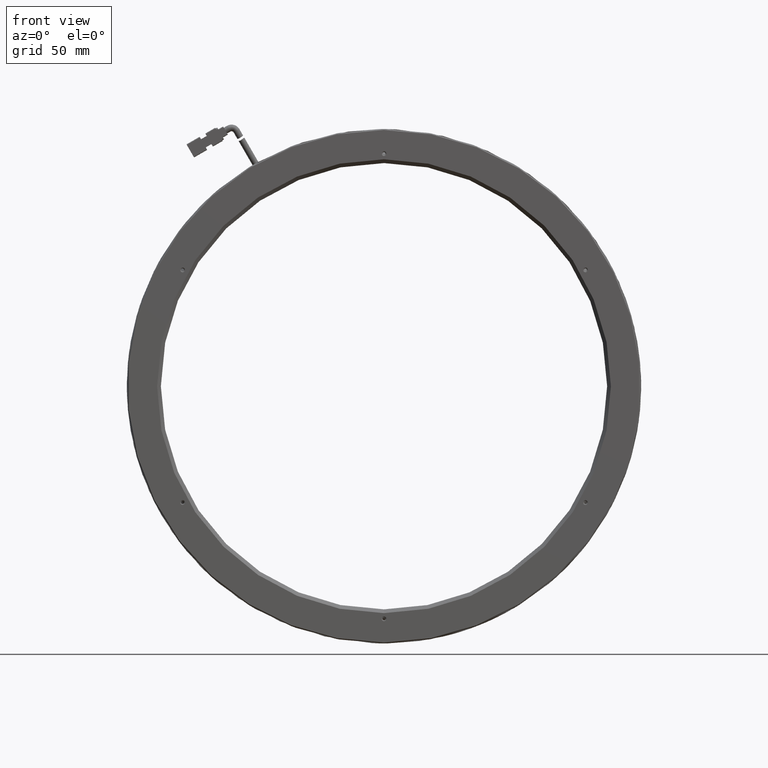
[diagram: clean part render]
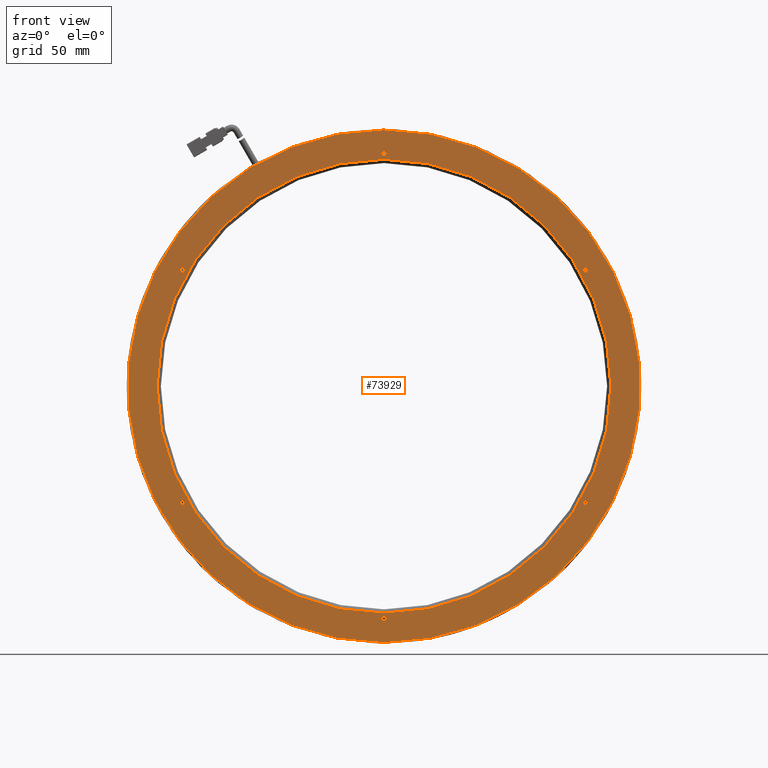
[diagram: same view with one face highlighted and labeled with its STEP entity id]
A machine part, front view. The second image highlights one B-rep face of the part: STEP entity #73929.
In plain terms, the highlighted planar face has unit normal (0, 1, 0).
Its self-contained STEP definition (entity closure, byte-faithful):
#355 = CIRCLE ( 'NONE', #2440, 135.5000000000000600 ) ;
#432 = EDGE_CURVE ( 'NONE', #66456, #11038, #44391, .T. ) ;
#2440 = AXIS2_PLACEMENT_3D ( 'NONE', #34137, #106592, #44519 ) ;
#2620 = VERTEX_POINT ( 'NONE', #104362 ) ;
#5239 = CARTESIAN_POINT ( 'NONE',  ( -23.30300868215379100, -3.366976514679594700, -121.7500000000000100 ) ) ;
#9697 = DIRECTION ( 'NONE',  ( -0.0000000000000000000, -1.000000000000000000, -0.0000000000000000000 ) ) ;
#10823 = EDGE_CURVE ( 'NONE', #91060, #79538, #19014, .T. ) ;
#11005 = EDGE_LOOP ( 'NONE', ( #99703, #20530 ) ) ;
#11038 = VERTEX_POINT ( 'NONE', #57504 ) ;
#11372 = DIRECTION ( 'NONE',  ( -0.0000000000000000000, -1.000000000000000000, -0.0000000000000000000 ) ) ;
#12764 = FACE_BOUND ( 'NONE', #73240, .T. ) ;
#13223 = EDGE_CURVE ( 'NONE', #13900, #14342, #84353, .T. ) ;
#13900 = VERTEX_POINT ( 'NONE', #41433 ) ;
#14342 = VERTEX_POINT ( 'NONE', #89174 ) ;
#15948 = FACE_BOUND ( 'NONE', #31777, .T. ) ;
#16019 = CARTESIAN_POINT ( 'NONE',  ( -129.8241333476390500, -3.366976514679594700, -61.50000000000125100 ) ) ;
#16391 = ORIENTED_EDGE ( 'NONE', *, *, #44585, .F. ) ;
#17404 = CIRCLE ( 'NONE', #46396, 1.249999999999987100 ) ;
#17595 = DIRECTION ( 'NONE',  ( -0.0000000000000000000, -1.000000000000000000, -0.0000000000000000000 ) ) ;
#19014 = CIRCLE ( 'NONE', #78968, 1.249999999999987100 ) ;
#19251 = CARTESIAN_POINT ( 'NONE',  ( 83.21811598333231100, -3.366976514679594700, -61.49999999999975800 ) ) ;
#19493 = EDGE_CURVE ( 'NONE', #126776, #125218, #62052, .T. ) ;
#19975 = ORIENTED_EDGE ( 'NONE', *, *, #77444, .F. ) ;
#20530 = ORIENTED_EDGE ( 'NONE', *, *, #10823, .F. ) ;
#21535 = DIRECTION ( 'NONE',  ( -0.0000000000000000000, 1.000000000000000000, 0.0000000000000000000 ) ) ;
#22469 = CARTESIAN_POINT ( 'NONE',  ( -23.30300868215464800, -3.366976514679594700, 121.7500000000000100 ) ) ;
#23592 = DIRECTION ( 'NONE',  ( 0.0000000000000000000, 1.000000000000000000, 0.0000000000000000000 ) ) ;
#23681 = DIRECTION ( 'NONE',  ( -0.0000000000000000000, -1.000000000000000000, -0.0000000000000000000 ) ) ;
#26424 = DIRECTION ( 'NONE',  ( 0.0000000000000000000, 0.0000000000000000000, -1.000000000000000000 ) ) ;
#27265 = EDGE_CURVE ( 'NONE', #2620, #118187, #355, .T. ) ;
#28080 = CARTESIAN_POINT ( 'NONE',  ( -23.30300868215379100, -3.366976514679588000, -120.0000000000000000 ) ) ;
#28303 = CIRCLE ( 'NONE', #106199, 1.249999999999994200 ) ;
#29642 = DIRECTION ( 'NONE',  ( 0.0000000000000000000, 0.0000000000000000000, -1.000000000000000000 ) ) ;
#29978 = CARTESIAN_POINT ( 'NONE',  ( -23.30300868215464800, -3.366976514679594700, 123.0000000000000000 ) ) ;
#31777 = EDGE_LOOP ( 'NONE', ( #102222, #118819 ) ) ;
#34137 = CARTESIAN_POINT ( 'NONE',  ( -23.30300868215379100, -3.366976514679594700, 0.0000000000000000000 ) ) ;
#34312 = ORIENTED_EDGE ( 'NONE', *, *, #44360, .F. ) ;
#34832 = DIRECTION ( 'NONE',  ( 0.0000000000000000000, 0.0000000000000000000, -1.000000000000000000 ) ) ;
#35277 = DIRECTION ( 'NONE',  ( -0.0000000000000000000, -1.000000000000000000, -0.0000000000000000000 ) ) ;
#35725 = CARTESIAN_POINT ( 'NONE',  ( -129.8241333476403300, -3.366976514679594700, 61.49999999999900500 ) ) ;
#37477 = CARTESIAN_POINT ( 'NONE',  ( -23.30300868215379100, -3.366976514679594700, -123.0000000000000000 ) ) ;
#39298 = ORIENTED_EDGE ( 'NONE', *, *, #79209, .F. ) ;
#39838 = CIRCLE ( 'NONE', #70569, 1.250000000000001100 ) ;
#40227 = FACE_OUTER_BOUND ( 'NONE', #66836, .T. ) ;
#40431 = DIRECTION ( 'NONE',  ( 0.0000000000000000000, 0.0000000000000000000, -1.000000000000000000 ) ) ;
#41433 = CARTESIAN_POINT ( 'NONE',  ( 83.21811598333231100, -3.366976514679594700, -60.24999999999976600 ) ) ;
#41836 = VERTEX_POINT ( 'NONE', #5239 ) ;
#44360 = EDGE_CURVE ( 'NONE', #118187, #2620, #62697, .T. ) ;
#44391 = CIRCLE ( 'NONE', #61346, 1.249999999999994200 ) ;
#44519 = DIRECTION ( 'NONE',  ( 0.0000000000000000000, 0.0000000000000000000, 1.000000000000000000 ) ) ;
#44585 = EDGE_CURVE ( 'NONE', #60656, #124222, #39838, .T. ) ;
#45464 = EDGE_CURVE ( 'NONE', #125218, #126776, #68454, .T. ) ;
#46140 = CARTESIAN_POINT ( 'NONE',  ( -129.8241333476390500, -3.366976514679594700, -61.50000000000125100 ) ) ;
#46396 = AXIS2_PLACEMENT_3D ( 'NONE', #37477, #109921, #47838 ) ;
#47409 = CARTESIAN_POINT ( 'NONE',  ( -23.30300868215377700, -3.366976514679588000, 120.0000000000000000 ) ) ;
#47838 = DIRECTION ( 'NONE',  ( 0.0000000000000000000, 0.0000000000000000000, -1.000000000000000000 ) ) ;
#54074 = CIRCLE ( 'NONE', #94203, 1.249999999999994200 ) ;
#54242 = AXIS2_PLACEMENT_3D ( 'NONE', #19251, #91658, #29642 ) ;
#54396 = CARTESIAN_POINT ( 'NONE',  ( -23.30300868215464800, -3.366976514679594700, 123.0000000000000000 ) ) ;
#56064 = CARTESIAN_POINT ( 'NONE',  ( -23.30300868215379100, -3.366976514679588000, 0.0000000000000000000 ) ) ;
#56557 = DIRECTION ( 'NONE',  ( 0.0000000000000000000, 0.0000000000000000000, -1.000000000000000000 ) ) ;
#57504 = CARTESIAN_POINT ( 'NONE',  ( -129.8241333476403300, -3.366976514679594700, 62.74999999999899800 ) ) ;
#58175 = CARTESIAN_POINT ( 'NONE',  ( -23.30300868215379100, -3.366976514679588000, 0.0000000000000000000 ) ) ;
#60047 = DIRECTION ( 'NONE',  ( -0.0000000000000000000, -1.000000000000000000, -0.0000000000000000000 ) ) ;
#60656 = VERTEX_POINT ( 'NONE', #77446 ) ;
#61346 = AXIS2_PLACEMENT_3D ( 'NONE', #35725, #35277, #34832 ) ;
#61623 = CARTESIAN_POINT ( 'NONE',  ( 83.21811598333189900, -3.366976514679594700, 62.75000000000049700 ) ) ;
#62052 = CIRCLE ( 'NONE', #71018, 120.0000000000000000 ) ;
#62697 = CIRCLE ( 'NONE', #89544, 135.5000000000000600 ) ;
#63911 = EDGE_LOOP ( 'NONE', ( #19975, #75755 ) ) ;
#64823 = DIRECTION ( 'NONE',  ( 0.0000000000000000000, 0.0000000000000000000, -1.000000000000000000 ) ) ;
#66387 = AXIS2_PLACEMENT_3D ( 'NONE', #58175, #130653, #68605 ) ;
#66456 = VERTEX_POINT ( 'NONE', #121169 ) ;
#66518 = DIRECTION ( 'NONE',  ( 0.0000000000000000000, 0.0000000000000000000, -1.000000000000000000 ) ) ;
#66526 = CIRCLE ( 'NONE', #90067, 1.249999999999994200 ) ;
#66836 = EDGE_LOOP ( 'NONE', ( #34312, #116481 ) ) ;
#67795 = FACE_BOUND ( 'NONE', #73456, .T. ) ;
#68454 = CIRCLE ( 'NONE', #66387, 120.0000000000000000 ) ;
#68605 = DIRECTION ( 'NONE',  ( 0.0000000000000000000, 0.0000000000000000000, -1.000000000000000000 ) ) ;
#69867 = AXIS2_PLACEMENT_3D ( 'NONE', #79602, #17595, #89973 ) ;
#70569 = AXIS2_PLACEMENT_3D ( 'NONE', #16019, #88439, #26424 ) ;
#70675 = EDGE_CURVE ( 'NONE', #109766, #110745, #66526, .T. ) ;
#71012 = FACE_BOUND ( 'NONE', #63911, .T. ) ;
#71018 = AXIS2_PLACEMENT_3D ( 'NONE', #56064, #128581, #66518 ) ;
#71704 = CARTESIAN_POINT ( 'NONE',  ( -129.8241333476403300, -3.366976514679594700, 61.49999999999900500 ) ) ;
#73113 = EDGE_CURVE ( 'NONE', #14342, #13900, #102306, .T. ) ;
#73240 = EDGE_LOOP ( 'NONE', ( #91470, #128457 ) ) ;
#73397 = CARTESIAN_POINT ( 'NONE',  ( 83.21811598333189900, -3.366976514679594700, 61.50000000000050400 ) ) ;
#73456 = EDGE_LOOP ( 'NONE', ( #108397, #95915 ) ) ;
#73929 = ADVANCED_FACE ( 'NONE', ( #122909, #15948, #71012, #95321, #67795, #84035, #40227, #12764 ), #74773, .F. ) ;
#74773 = PLANE ( 'NONE',  #80419 ) ;
#75342 = EDGE_LOOP ( 'NONE', ( #78311, #39298 ) ) ;
#75755 = ORIENTED_EDGE ( 'NONE', *, *, #70675, .F. ) ;
#76167 = ORIENTED_EDGE ( 'NONE', *, *, #94892, .F. ) ;
#76499 = AXIS2_PLACEMENT_3D ( 'NONE', #85677, #23681, #96100 ) ;
#77444 = EDGE_CURVE ( 'NONE', #110745, #109766, #28303, .T. ) ;
#77446 = CARTESIAN_POINT ( 'NONE',  ( -129.8241333476390500, -3.366976514679594700, -60.25000000000125100 ) ) ;
#78311 = ORIENTED_EDGE ( 'NONE', *, *, #99035, .F. ) ;
#78968 = AXIS2_PLACEMENT_3D ( 'NONE', #54396, #126893, #64823 ) ;
#79209 = EDGE_CURVE ( 'NONE', #41836, #126509, #17404, .T. ) ;
#79538 = VERTEX_POINT ( 'NONE', #22469 ) ;
#79602 = CARTESIAN_POINT ( 'NONE',  ( 83.21811598333231100, -3.366976514679594700, -61.49999999999975800 ) ) ;
#80419 = AXIS2_PLACEMENT_3D ( 'NONE', #85576, #23592, #96001 ) ;
#81366 = EDGE_LOOP ( 'NONE', ( #76167, #16391 ) ) ;
#82081 = DIRECTION ( 'NONE',  ( 0.0000000000000000000, 0.0000000000000000000, -1.000000000000000000 ) ) ;
#82693 = CARTESIAN_POINT ( 'NONE',  ( -129.8241333476390500, -3.366976514679594700, -62.75000000000125100 ) ) ;
#83553 = CARTESIAN_POINT ( 'NONE',  ( -23.30300868215379100, -3.366976514679594700, 0.0000000000000000000 ) ) ;
#83772 = DIRECTION ( 'NONE',  ( 0.0000000000000000000, 0.0000000000000000000, -1.000000000000000000 ) ) ;
#84035 = FACE_BOUND ( 'NONE', #81366, .T. ) ;
#84353 = CIRCLE ( 'NONE', #69867, 1.249999999999994200 ) ;
#85576 = CARTESIAN_POINT ( 'NONE',  ( -159.3030086821538000, -3.366976514679594700, 0.0000000000000000000 ) ) ;
#85677 = CARTESIAN_POINT ( 'NONE',  ( -23.30300868215379100, -3.366976514679594700, -123.0000000000000000 ) ) ;
#88185 = CIRCLE ( 'NONE', #76499, 1.249999999999987100 ) ;
#88439 = DIRECTION ( 'NONE',  ( -0.0000000000000000000, -1.000000000000000000, -0.0000000000000000000 ) ) ;
#88615 = AXIS2_PLACEMENT_3D ( 'NONE', #29978, #102423, #40431 ) ;
#89174 = CARTESIAN_POINT ( 'NONE',  ( 83.21811598333231100, -3.366976514679594700, -62.74999999999975100 ) ) ;
#89544 = AXIS2_PLACEMENT_3D ( 'NONE', #83553, #21535, #93950 ) ;
#89973 = DIRECTION ( 'NONE',  ( 0.0000000000000000000, 0.0000000000000000000, -1.000000000000000000 ) ) ;
#90067 = AXIS2_PLACEMENT_3D ( 'NONE', #73397, #11372, #83772 ) ;
#90446 = CARTESIAN_POINT ( 'NONE',  ( -23.30300868215464800, -3.366976514679594700, 124.2499999999999900 ) ) ;
#91060 = VERTEX_POINT ( 'NONE', #90446 ) ;
#91470 = ORIENTED_EDGE ( 'NONE', *, *, #45464, .F. ) ;
#91658 = DIRECTION ( 'NONE',  ( -0.0000000000000000000, -1.000000000000000000, -0.0000000000000000000 ) ) ;
#93950 = DIRECTION ( 'NONE',  ( 0.0000000000000000000, 0.0000000000000000000, 1.000000000000000000 ) ) ;
#93952 = AXIS2_PLACEMENT_3D ( 'NONE', #46140, #118624, #56557 ) ;
#94203 = AXIS2_PLACEMENT_3D ( 'NONE', #71704, #9697, #82081 ) ;
#94892 = EDGE_CURVE ( 'NONE', #124222, #60656, #101764, .T. ) ;
#95055 = CARTESIAN_POINT ( 'NONE',  ( -23.30300868215379100, -3.366976514679594700, -124.2499999999999900 ) ) ;
#95321 = FACE_BOUND ( 'NONE', #11005, .T. ) ;
#95915 = ORIENTED_EDGE ( 'NONE', *, *, #127541, .F. ) ;
#96001 = DIRECTION ( 'NONE',  ( 0.0000000000000000000, -0.0000000000000000000, 1.000000000000000000 ) ) ;
#96100 = DIRECTION ( 'NONE',  ( 0.0000000000000000000, 0.0000000000000000000, -1.000000000000000000 ) ) ;
#99035 = EDGE_CURVE ( 'NONE', #126509, #41836, #88185, .T. ) ;
#99703 = ORIENTED_EDGE ( 'NONE', *, *, #130427, .F. ) ;
#101764 = CIRCLE ( 'NONE', #93952, 1.250000000000001100 ) ;
#102222 = ORIENTED_EDGE ( 'NONE', *, *, #73113, .F. ) ;
#102306 = CIRCLE ( 'NONE', #54242, 1.249999999999994200 ) ;
#102423 = DIRECTION ( 'NONE',  ( -0.0000000000000000000, -1.000000000000000000, -0.0000000000000000000 ) ) ;
#104362 = CARTESIAN_POINT ( 'NONE',  ( -23.30300868215377400, -3.366976514679594700, -135.5000000000000600 ) ) ;
#106199 = AXIS2_PLACEMENT_3D ( 'NONE', #122124, #60047, #132514 ) ;
#106592 = DIRECTION ( 'NONE',  ( -0.0000000000000000000, 1.000000000000000000, 0.0000000000000000000 ) ) ;
#108397 = ORIENTED_EDGE ( 'NONE', *, *, #432, .F. ) ;
#109766 = VERTEX_POINT ( 'NONE', #61623 ) ;
#109921 = DIRECTION ( 'NONE',  ( -0.0000000000000000000, -1.000000000000000000, -0.0000000000000000000 ) ) ;
#110745 = VERTEX_POINT ( 'NONE', #112092 ) ;
#112092 = CARTESIAN_POINT ( 'NONE',  ( 83.21811598333189900, -3.366976514679594700, 60.25000000000051200 ) ) ;
#114250 = CARTESIAN_POINT ( 'NONE',  ( -23.30300868215379100, -3.366976514679594700, 135.5000000000000600 ) ) ;
#115631 = CIRCLE ( 'NONE', #88615, 1.249999999999987100 ) ;
#116481 = ORIENTED_EDGE ( 'NONE', *, *, #27265, .F. ) ;
#118187 = VERTEX_POINT ( 'NONE', #114250 ) ;
#118624 = DIRECTION ( 'NONE',  ( -0.0000000000000000000, -1.000000000000000000, -0.0000000000000000000 ) ) ;
#118819 = ORIENTED_EDGE ( 'NONE', *, *, #13223, .F. ) ;
#121169 = CARTESIAN_POINT ( 'NONE',  ( -129.8241333476403300, -3.366976514679594700, 60.24999999999901200 ) ) ;
#122124 = CARTESIAN_POINT ( 'NONE',  ( 83.21811598333189900, -3.366976514679594700, 61.50000000000050400 ) ) ;
#122909 = FACE_BOUND ( 'NONE', #75342, .T. ) ;
#124222 = VERTEX_POINT ( 'NONE', #82693 ) ;
#125218 = VERTEX_POINT ( 'NONE', #28080 ) ;
#126509 = VERTEX_POINT ( 'NONE', #95055 ) ;
#126776 = VERTEX_POINT ( 'NONE', #47409 ) ;
#126893 = DIRECTION ( 'NONE',  ( -0.0000000000000000000, -1.000000000000000000, -0.0000000000000000000 ) ) ;
#127541 = EDGE_CURVE ( 'NONE', #11038, #66456, #54074, .T. ) ;
#128457 = ORIENTED_EDGE ( 'NONE', *, *, #19493, .F. ) ;
#128581 = DIRECTION ( 'NONE',  ( 0.0000000000000000000, -1.000000000000000000, 0.0000000000000000000 ) ) ;
#130427 = EDGE_CURVE ( 'NONE', #79538, #91060, #115631, .T. ) ;
#130653 = DIRECTION ( 'NONE',  ( 0.0000000000000000000, -1.000000000000000000, 0.0000000000000000000 ) ) ;
#132514 = DIRECTION ( 'NONE',  ( 0.0000000000000000000, 0.0000000000000000000, -1.000000000000000000 ) ) ;